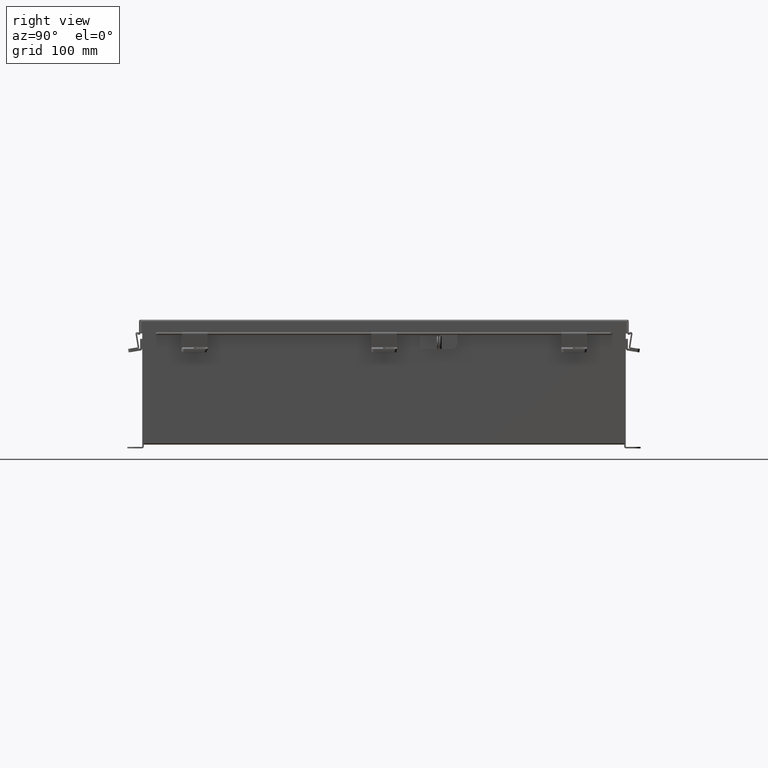
[diagram: clean part render]
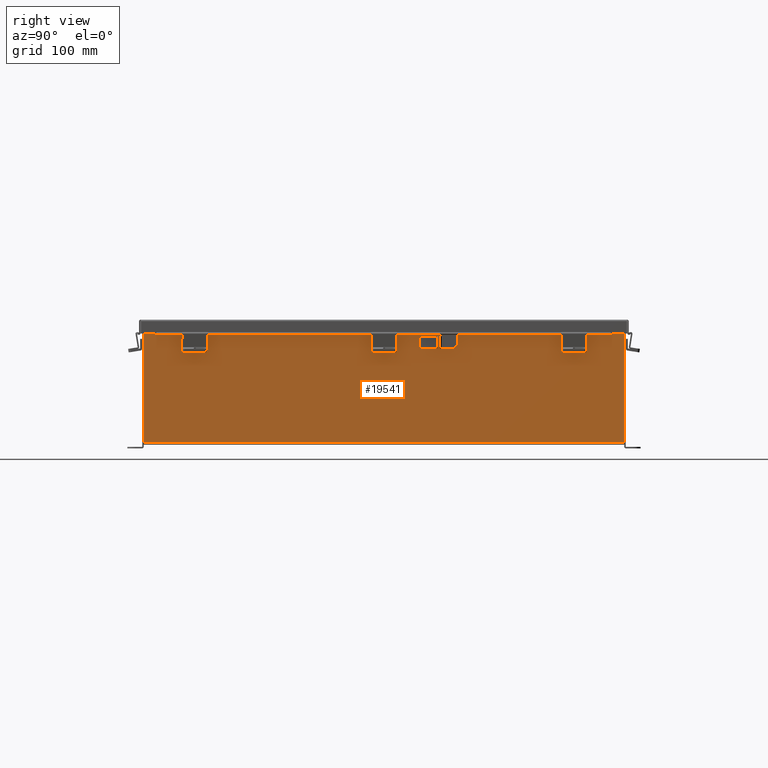
[diagram: same view with one face highlighted and labeled with its STEP entity id]
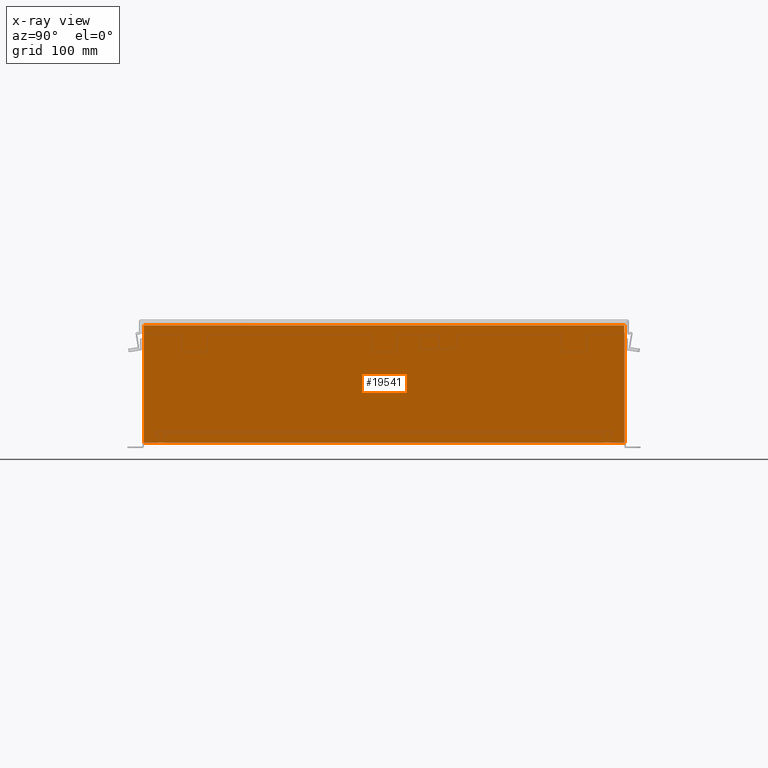
[diagram: x-ray of the same camera — body ghosted, the highlighted face saturated]
A machine part, right view. The second image highlights one B-rep face of the part: STEP entity #19541.
The next image is the same camera in x-ray: the body ghosted, the highlighted face saturated — about 0% of this face is hidden behind the body in this view.
In plain terms, the highlighted planar face has unit normal (-1, 0, 0).
Its self-contained STEP definition (entity closure, byte-faithful):
#553 = EDGE_CURVE ( 'NONE', #4631, #20264, #10492, .T. ) ;
#943 = DIRECTION ( 'NONE',  ( 3.361929640444176300E-015, -3.735477378271307500E-016, 1.000000000000000000 ) ) ;
#1472 = CARTESIAN_POINT ( 'NONE',  ( 12.00000000000000200, 11.92530000000000000, -3.614576376617028200E-014 ) ) ;
#4631 = VERTEX_POINT ( 'NONE', #5859 ) ;
#5859 = CARTESIAN_POINT ( 'NONE',  ( 12.00000000000002100, -11.92530000000000000, 5.837599999999999200 ) ) ;
#6942 = ORIENTED_EDGE ( 'NONE', *, *, #12047, .F. ) ;
#7871 = DIRECTION ( 'NONE',  ( 3.361929640444175900E-015, 0.0000000000000000000, 1.000000000000000000 ) ) ;
#8235 = CARTESIAN_POINT ( 'NONE',  ( 12.00000000000000200, 0.0000000000000000000, -4.060209080583511000E-014 ) ) ;
#8727 = PLANE ( 'NONE',  #19002 ) ;
#9058 = CARTESIAN_POINT ( 'NONE',  ( 12.00000000000002100, 11.92529999999999800, 5.837599999999999200 ) ) ;
#10078 = EDGE_CURVE ( 'NONE', #14778, #4631, #20568, .T. ) ;
#10492 = LINE ( 'NONE', #12526, #10547 ) ;
#10547 = VECTOR ( 'NONE', #12491, 39.37007874015748100 ) ;
#12047 = EDGE_CURVE ( 'NONE', #22258, #20264, #22429, .T. ) ;
#12446 = EDGE_CURVE ( 'NONE', #22258, #14778, #20063, .T. ) ;
#12491 = DIRECTION ( 'NONE',  ( -3.361929640444176300E-015, 0.0000000000000000000, -1.000000000000000000 ) ) ;
#12526 = CARTESIAN_POINT ( 'NONE',  ( 12.00000000000000200, -11.92530000000000000, -4.060209080583511000E-014 ) ) ;
#13316 = CARTESIAN_POINT ( 'NONE',  ( 12.00000000000000200, -11.92530000000000000, 0.01299999999999985900 ) ) ;
#14778 = VERTEX_POINT ( 'NONE', #9058 ) ;
#18856 = CARTESIAN_POINT ( 'NONE',  ( 12.00000000000002100, 11.92530000000000000, 5.837599999999999200 ) ) ;
#19002 = AXIS2_PLACEMENT_3D ( 'NONE', #8235, #24387, #7871 ) ;
#19315 = DIRECTION ( 'NONE',  ( -0.0000000000000000000, -1.000000000000000000, -0.0000000000000000000 ) ) ;
#19456 = CARTESIAN_POINT ( 'NONE',  ( 12.00000000000000200, 11.92529999999999800, 0.01299999999999985900 ) ) ;
#19541 = ADVANCED_FACE ( 'NONE', ( #24934 ), #8727, .F. ) ;
#19595 = VECTOR ( 'NONE', #19315, 39.37007874015748100 ) ;
#19706 = DIRECTION ( 'NONE',  ( -0.0000000000000000000, -1.000000000000000000, -0.0000000000000000000 ) ) ;
#19800 = CARTESIAN_POINT ( 'NONE',  ( 12.00000000000000200, -11.92530000000000000, 0.01299999999999985900 ) ) ;
#20035 = VECTOR ( 'NONE', #943, 39.37007874015748100 ) ;
#20063 = LINE ( 'NONE', #1472, #20035 ) ;
#20264 = VERTEX_POINT ( 'NONE', #13316 ) ;
#20568 = LINE ( 'NONE', #18856, #19595 ) ;
#22001 = EDGE_LOOP ( 'NONE', ( #24291, #23239, #6942, #24007 ) ) ;
#22258 = VERTEX_POINT ( 'NONE', #19456 ) ;
#22429 = LINE ( 'NONE', #19800, #22583 ) ;
#22583 = VECTOR ( 'NONE', #19706, 39.37007874015748100 ) ;
#23239 = ORIENTED_EDGE ( 'NONE', *, *, #553, .T. ) ;
#24007 = ORIENTED_EDGE ( 'NONE', *, *, #12446, .T. ) ;
#24291 = ORIENTED_EDGE ( 'NONE', *, *, #10078, .T. ) ;
#24387 = DIRECTION ( 'NONE',  ( -1.000000000000000000, 0.0000000000000000000, 3.361929640444175900E-015 ) ) ;
#24934 = FACE_OUTER_BOUND ( 'NONE', #22001, .T. ) ;